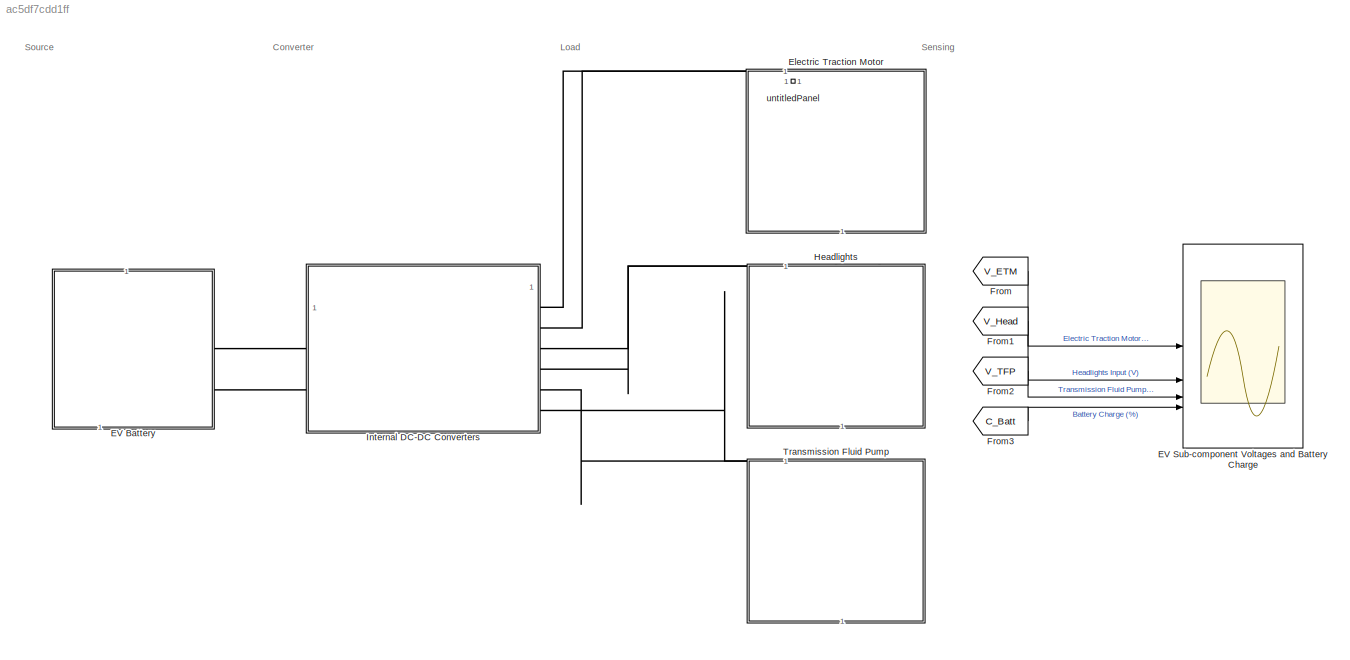
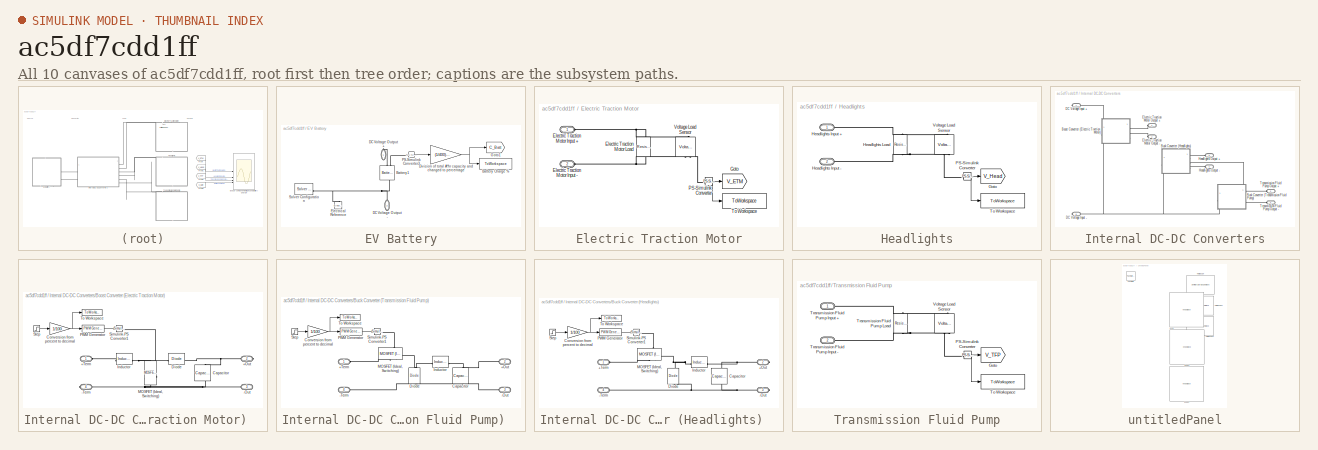
[diagram: thumbnail index - all 10 canvases of the model, root first then tree order]
MODEL slx_ac5df7cdd1ff
KIND model
CONFIG AbsTol = auto
CONFIG EnableMultiTasking = off
CONFIG FixedStep = auto
CONFIG MaxStep = auto
CONFIG MinStep = auto
CONFIG RelTol = 1e-3
CONFIG SampleTimeConstraint = Unconstrained
CONFIG SolverName = ode23t
CONFIG StartTime = 0.0
CONFIG StopTime = 0.08
BLOCK [SubSystem] EV Battery
  PortSchema = {"entries":[{"content":{"sides":[{"content":{},"type":"ConnectorPlacement.EquallySpacedRectSide","uuid":"c6623932-9384-4505-9c8a-7aa7c6d03efe"},{"content":{"side":"RIGHT"},"type":"ConnectorPlacement.EquallySpacedRectSide","uuid":"b63081fa-6f2e-4d52-89b7-0b15c2ff5a8a"},{"content":{"side":"TOP"},"type":"ConnectorPlacement.EquallySpacedRectSide","uuid":"293a2b80-333e-46a9-baf9-140dd0ae167b"},{"conten...<+337ch>
BLOCK [ToWorkspace] EV Battery/Battery Charge %
  FixptAsFi = on
  MaxDataPoints = inf
  SampleTime = -1
  VariableName = Charge
BLOCK [Reference] EV Battery/Battery1  REF=batteryecm_lib/Battery
  LibrarySourceBlock = batt_lib/Cells/Battery
  NameLocation = left
  SourceBlock = batteryecm_lib/Battery
  SourceType = Battery
BLOCK [PMIOPort] EV Battery/DC Voltage Output +
  NameLocation = left
  Side = Right
BLOCK [PMIOPort] EV Battery/DC Voltage Output -
  NameLocation = left
  Port = 2
  Side = Right
BLOCK [Gain] EV Battery/Division of total A*hr capacity and changed to percentage
  Gain = (1/400)*100
BLOCK [Reference] EV Battery/Electrical Reference  REF=fl_lib/Electrical/Electrical Elements/Electrical Reference
  NameLocation = right
  SourceBlock = fl_lib/Electrical/Electrical Elements/Electrical Reference
  SourceType = Electrical Reference
BLOCK [Goto] EV Battery/Goto1
  GotoTag = C_Batt
  TagVisibility = global
BLOCK [Reference] EV Battery/PS-Simulink Converter3  REF=nesl_utility/PS-Simulink
Converter
  SourceBlock = nesl_utility/PS-Simulink\nConverter
  SourceType = PS-Simulink\nConverter
BLOCK [Reference] EV Battery/Solver Configuration  REF=nesl_utility/Solver
Configuration
  SourceBlock = nesl_utility/Solver\nConfiguration
  SourceType = Solver\nConfiguration
BLOCK [Scope] EV Sub-component Voltages and Battery Charge
  Floating = off
  NumInputPorts = 4
  ScopeSpecificationString = Simulink.scopes.TimeScopeBlockCfg('CurrentConfiguration', extmgr.ConfigurationSet(extmgr.Configuration('Core','General UI',true),extmgr.Configuration('Core','Source UI',true),extmgr.Configuration('Sources','WiredSimulink',true),extmgr.Configuration('Visuals','Time Domain',true,'SerializedDisplays',{struct('MinYLimReal','-46.23272','MaxYLimReal','416.09445','YLabelReal','','MinYLimMag','0.00000','M...<+5601ch>
BLOCK [SubSystem] Electric Traction Motor
  PortSchema = {"entries":[{"content":{"sides":[{"content":{},"type":"ConnectorPlacement.EquallySpacedRectSide","uuid":"1c916003-081d-495c-ab06-e1419b6c539b"},{"content":{"side":"RIGHT"},"type":"ConnectorPlacement.EquallySpacedRectSide","uuid":"f192687e-cae6-4b69-b15b-4d7b02c42b9f"},{"content":{"connectorIds":["LConn1","LConn2"],"side":"TOP"},"type":"ConnectorPlacement.EquallySpacedRectSide","uuid":"4ee18eaf-a0e...<+211ch>  <repeated x3 — deduplicated; at blocks: Electric Traction Motor, Headlights, Transmission Fluid Pump>
BLOCK [PMIOPort] Electric Traction Motor/Electric Traction Motor Input +
  Side = Left
BLOCK [PMIOPort] Electric Traction Motor/Electric Traction Motor Input -
  Port = 2
  Side = Left
BLOCK [Reference] Electric Traction Motor/Electric Traction Motor Load  REF=fl_lib/Electrical/Electrical Elements/Resistor
  NameLocation = left
  SourceBlock = fl_lib/Electrical/Electrical Elements/Resistor
  SourceType = Resistor
BLOCK [Goto] Electric Traction Motor/Goto
  GotoTag = V_ETM
  TagVisibility = global
BLOCK [Reference] Electric Traction Motor/PS-Simulink Converter  REF=nesl_utility/PS-Simulink
Converter
  SourceBlock = nesl_utility/PS-Simulink\nConverter
  SourceType = PS-Simulink\nConverter
BLOCK [ToWorkspace] Electric Traction Motor/To Workspace
  FixptAsFi = on
  MaxDataPoints = inf
  SampleTime = -1
  VariableName = V_ETM
BLOCK [Reference] Electric Traction Motor/Voltage Load Sensor  REF=fl_lib/Electrical/Electrical Sensors/Voltage Sensor
  NameLocation = right
  SourceBlock = fl_lib/Electrical/Electrical Sensors/Voltage Sensor
  SourceType = Voltage Sensor
BLOCK [From] From
  GotoTag = V_ETM
  TagVisibility = global
BLOCK [From] From1
  GotoTag = V_Head
  TagVisibility = global
BLOCK [From] From2
  GotoTag = V_TFP
  TagVisibility = global
BLOCK [From] From3
  GotoTag = C_Batt
  TagVisibility = global
BLOCK [SubSystem] Headlights
BLOCK [Goto] Headlights/Goto
  GotoTag = V_Head
  TagVisibility = global
BLOCK [PMIOPort] Headlights/Headlights Input +
  Side = Left
BLOCK [PMIOPort] Headlights/Headlights Input -
  Port = 2
  Side = Left
BLOCK [Reference] Headlights/Headlights Load  REF=fl_lib/Electrical/Electrical Elements/Resistor
  NameLocation = left
  SourceBlock = fl_lib/Electrical/Electrical Elements/Resistor
  SourceType = Resistor
BLOCK [Reference] Headlights/PS-Simulink Converter  REF=nesl_utility/PS-Simulink
Converter
  SourceBlock = nesl_utility/PS-Simulink\nConverter
  SourceType = PS-Simulink\nConverter
BLOCK [ToWorkspace] Headlights/To Workspace
  FixptAsFi = on
  MaxDataPoints = inf
  SampleTime = -1
  VariableName = V_Head
BLOCK [Reference] Headlights/Voltage Load Sensor  REF=fl_lib/Electrical/Electrical Sensors/Voltage Sensor
  NameLocation = right
  SourceBlock = fl_lib/Electrical/Electrical Sensors/Voltage Sensor
  SourceType = Voltage Sensor
BLOCK [SubSystem] Internal DC-DC Converters
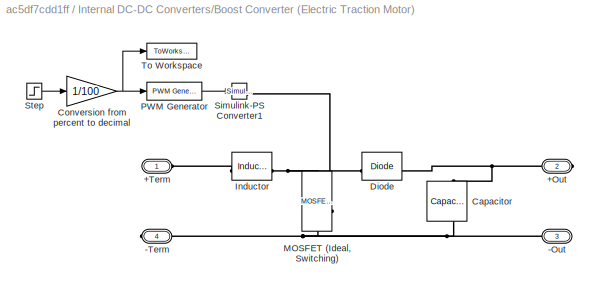
BLOCK [SubSystem] Internal DC-DC Converters/Boost Converter (Electric Traction Motor)  
  NameLocation = left
  PortSchema = {"entries":[{"content":{"sides":[{"content":{},"type":"ConnectorPlacement.EquallySpacedRectSide","uuid":"de7f9f94-85d7-4c11-a379-f82d9a676ef7"},{"content":{"connectorIds":["RConn1","RConn2"],"side":"RIGHT"},"type":"ConnectorPlacement.EquallySpacedRectSide","uuid":"401d076f-92b5-441a-942d-9f536a3912de"},{"content":{"connectorIds":["LConn1"],"side":"TOP"},"type":"ConnectorPlacement.EquallySpacedRect...<+389ch>  <repeated x3 — deduplicated; at blocks: Boost Converter (Electric Traction Motor), Buck Converter (Headlights), Buck Converter (Transmission Fluid Pump)>
BLOCK [PMIOPort] Internal DC-DC Converters/Boost Converter (Electric Traction Motor)  /+Out
  Port = 2
  Side = Right
BLOCK [PMIOPort] Internal DC-DC Converters/Boost Converter (Electric Traction Motor)  /+Term
  Side = Left
BLOCK [PMIOPort] Internal DC-DC Converters/Boost Converter (Electric Traction Motor)  /-Out
  Port = 3
  Side = Right
BLOCK [PMIOPort] Internal DC-DC Converters/Boost Converter (Electric Traction Motor)  /-Term
  Port = 4
  Side = Right
BLOCK [Reference] Internal DC-DC Converters/Boost Converter (Electric Traction Motor)  /Capacitor  REF=fl_lib/Electrical/Electrical Elements/Capacitor
  NameLocation = left
  SourceBlock = fl_lib/Electrical/Electrical Elements/Capacitor
  SourceType = Capacitor
BLOCK [Gain] Internal DC-DC Converters/Boost Converter (Electric Traction Motor)  /Conversion from percent to decimal
  Gain = 1/100
BLOCK [Reference] Internal DC-DC Converters/Boost Converter (Electric Traction Motor)  /Diode  REF=fl_lib/Electrical/Electrical Elements/Diode
  NameLocation = top
  SourceBlock = fl_lib/Electrical/Electrical Elements/Diode
  SourceType = Diode
BLOCK [Reference] Internal DC-DC Converters/Boost Converter (Electric Traction Motor)  /Inductor  REF=fl_lib/Electrical/Electrical Elements/Inductor
  NameLocation = top
  SourceBlock = fl_lib/Electrical/Electrical Elements/Inductor
  SourceType = Inductor
BLOCK [Reference] Internal DC-DC Converters/Boost Converter (Electric Traction Motor)  /MOSFET (Ideal, Switching)  REF=ee_lib/Semiconductors &
Converters/MOSFET
(Ideal,
Switching)
  NameLocation = left
  SourceBlock = ee_lib/Semiconductors &\nConverters/MOSFET\n(Ideal,\nSwitching)
  SourceType = MOSFET\n(Ideal,\nSwitching)
BLOCK [Reference] Internal DC-DC Converters/Boost Converter (Electric Traction Motor)  /PWM Generator  REF=eePwmGenerator/PWM Generator
  LibrarySourceBlock = ee_sl_lib/Pulse Width\nModulation/PWM Generator
  SourceBlock = eePwmGenerator/PWM Generator
  SourceType = PWM Generator
BLOCK [Reference] Internal DC-DC Converters/Boost Converter (Electric Traction Motor)  /Simulink-PS Converter1  REF=nesl_utility/Simulink-PS
Converter
  SourceBlock = nesl_utility/Simulink-PS\nConverter
  SourceType = Simulink-PS\nConverter
BLOCK [Step] Internal DC-DC Converters/Boost Converter (Electric Traction Motor)  /Step
  After = 0
  SampleTime = 0
  Time = 0.035
BLOCK [ToWorkspace] Internal DC-DC Converters/Boost Converter (Electric Traction Motor)  /To Workspace
  FixptAsFi = on
  MaxDataPoints = inf
  SampleTime = -1
  VariableName = DC_ETM
BLOCK [SubSystem] Internal DC-DC Converters/Buck Converter (Headlights)  
  NameLocation = left
BLOCK [PMIOPort] Internal DC-DC Converters/Buck Converter (Headlights)  /+Out
  Port = 2
  Side = Right
BLOCK [PMIOPort] Internal DC-DC Converters/Buck Converter (Headlights)  /+Term
  Side = Left
BLOCK [PMIOPort] Internal DC-DC Converters/Buck Converter (Headlights)  /-Out
  Port = 3
  Side = Right
BLOCK [PMIOPort] Internal DC-DC Converters/Buck Converter (Headlights)  /-Term
  Port = 4
  Side = Right
BLOCK [Reference] Internal DC-DC Converters/Buck Converter (Headlights)  /Capacitor  REF=fl_lib/Electrical/Electrical Elements/Capacitor
  NameLocation = left
  SourceBlock = fl_lib/Electrical/Electrical Elements/Capacitor
  SourceType = Capacitor
BLOCK [Gain] Internal DC-DC Converters/Buck Converter (Headlights)  /Conversion from percent to decimal
  Gain = 1/100
BLOCK [Reference] Internal DC-DC Converters/Buck Converter (Headlights)  /Diode  REF=fl_lib/Electrical/Electrical Elements/Diode
  NameLocation = left
  SourceBlock = fl_lib/Electrical/Electrical Elements/Diode
  SourceType = Diode
BLOCK [Reference] Internal DC-DC Converters/Buck Converter (Headlights)  /Inductor  REF=fl_lib/Electrical/Electrical Elements/Inductor
  NameLocation = top
  SourceBlock = fl_lib/Electrical/Electrical Elements/Inductor
  SourceType = Inductor
BLOCK [Reference] Internal DC-DC Converters/Buck Converter (Headlights)  /MOSFET (Ideal, Switching)  REF=ee_lib/Semiconductors &
Converters/MOSFET
(Ideal,
Switching)
  NameLocation = right
  SourceBlock = ee_lib/Semiconductors &\nConverters/MOSFET\n(Ideal,\nSwitching)
  SourceType = MOSFET\n(Ideal,\nSwitching)
BLOCK [Reference] Internal DC-DC Converters/Buck Converter (Headlights)  /PWM Generator  REF=eePwmGenerator/PWM Generator
  LibrarySourceBlock = ee_sl_lib/Pulse Width\nModulation/PWM Generator
  SourceBlock = eePwmGenerator/PWM Generator
  SourceType = PWM Generator
BLOCK [Reference] Internal DC-DC Converters/Buck Converter (Headlights)  /Simulink-PS Converter1  REF=nesl_utility/Simulink-PS
Converter
  SourceBlock = nesl_utility/Simulink-PS\nConverter
  SourceType = Simulink-PS\nConverter
BLOCK [Step] Internal DC-DC Converters/Buck Converter (Headlights)  /Step
  After = 0
  SampleTime = 0
  Time = 0.035
BLOCK [ToWorkspace] Internal DC-DC Converters/Buck Converter (Headlights)  /To Workspace
  FixptAsFi = on
  MaxDataPoints = inf
  SampleTime = -1
  VariableName = DC_Head
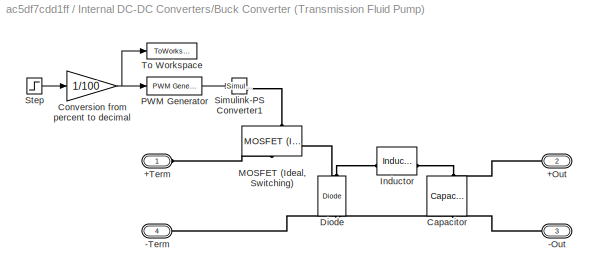
BLOCK [SubSystem] Internal DC-DC Converters/Buck Converter (Transmission Fluid Pump)  
  NameLocation = left
BLOCK [PMIOPort] Internal DC-DC Converters/Buck Converter (Transmission Fluid Pump)  /+Out
  Port = 2
  Side = Right
BLOCK [PMIOPort] Internal DC-DC Converters/Buck Converter (Transmission Fluid Pump)  /+Term
  Side = Left
BLOCK [PMIOPort] Internal DC-DC Converters/Buck Converter (Transmission Fluid Pump)  /-Out
  Port = 3
  Side = Right
BLOCK [PMIOPort] Internal DC-DC Converters/Buck Converter (Transmission Fluid Pump)  /-Term
  Port = 4
  Side = Right
BLOCK [Reference] Internal DC-DC Converters/Buck Converter (Transmission Fluid Pump)  /Capacitor  REF=fl_lib/Electrical/Electrical Elements/Capacitor
  NameLocation = left
  SourceBlock = fl_lib/Electrical/Electrical Elements/Capacitor
  SourceType = Capacitor
BLOCK [Gain] Internal DC-DC Converters/Buck Converter (Transmission Fluid Pump)  /Conversion from percent to decimal
  Gain = 1/100
BLOCK [Reference] Internal DC-DC Converters/Buck Converter (Transmission Fluid Pump)  /Diode  REF=fl_lib/Electrical/Electrical Elements/Diode
  NameLocation = left
  SourceBlock = fl_lib/Electrical/Electrical Elements/Diode
  SourceType = Diode
BLOCK [Reference] Internal DC-DC Converters/Buck Converter (Transmission Fluid Pump)  /Inductor  REF=fl_lib/Electrical/Electrical Elements/Inductor
  NameLocation = top
  SourceBlock = fl_lib/Electrical/Electrical Elements/Inductor
  SourceType = Inductor
BLOCK [Reference] Internal DC-DC Converters/Buck Converter (Transmission Fluid Pump)  /MOSFET (Ideal, Switching)  REF=ee_lib/Semiconductors &
Converters/MOSFET
(Ideal,
Switching)
  NameLocation = right
  SourceBlock = ee_lib/Semiconductors &\nConverters/MOSFET\n(Ideal,\nSwitching)
  SourceType = MOSFET\n(Ideal,\nSwitching)
BLOCK [Reference] Internal DC-DC Converters/Buck Converter (Transmission Fluid Pump)  /PWM Generator  REF=eePwmGenerator/PWM Generator
  LibrarySourceBlock = ee_sl_lib/Pulse Width\nModulation/PWM Generator
  SourceBlock = eePwmGenerator/PWM Generator
  SourceType = PWM Generator
BLOCK [Reference] Internal DC-DC Converters/Buck Converter (Transmission Fluid Pump)  /Simulink-PS Converter1  REF=nesl_utility/Simulink-PS
Converter
  SourceBlock = nesl_utility/Simulink-PS\nConverter
  SourceType = Simulink-PS\nConverter
BLOCK [Step] Internal DC-DC Converters/Buck Converter (Transmission Fluid Pump)  /Step
  After = 0
  SampleTime = 0
  Time = 0.035
BLOCK [ToWorkspace] Internal DC-DC Converters/Buck Converter (Transmission Fluid Pump)  /To Workspace
  FixptAsFi = on
  MaxDataPoints = inf
  SampleTime = -1
  VariableName = DC_TFP
BLOCK [PMIOPort] Internal DC-DC Converters/DC Voltage Input +
  Port = 7
  Side = Right
BLOCK [PMIOPort] Internal DC-DC Converters/DC Voltage Input -
  Port = 8
  Side = Right
BLOCK [PMIOPort] Internal DC-DC Converters/Electric Traction Motor Output +
  NameLocation = top
  Side = Left
BLOCK [PMIOPort] Internal DC-DC Converters/Electric Traction Motor Output -
  Port = 2
  Side = Left
BLOCK [PMIOPort] Internal DC-DC Converters/Headlights Output +
  NameLocation = top
  Port = 3
  Side = Left
BLOCK [PMIOPort] Internal DC-DC Converters/Headlights Output -
  Port = 4
  Side = Left
BLOCK [PMIOPort] Internal DC-DC Converters/Transmission Fluid Pump Output +
  NameLocation = top
  Port = 5
  Side = Left
BLOCK [PMIOPort] Internal DC-DC Converters/Transmission Fluid Pump Output -
  Port = 6
  Side = Left
BLOCK [SubSystem] Transmission Fluid Pump
BLOCK [Goto] Transmission Fluid Pump/Goto
  GotoTag = V_TFP
  TagVisibility = global
BLOCK [Reference] Transmission Fluid Pump/PS-Simulink Converter  REF=nesl_utility/PS-Simulink
Converter
  SourceBlock = nesl_utility/PS-Simulink\nConverter
  SourceType = PS-Simulink\nConverter
BLOCK [ToWorkspace] Transmission Fluid Pump/To Workspace
  FixptAsFi = on
  MaxDataPoints = inf
  SampleTime = -1
  VariableName = V_TFP
BLOCK [PMIOPort] Transmission Fluid Pump/Transmission Fluid Pump Input +
  Side = Left
BLOCK [PMIOPort] Transmission Fluid Pump/Transmission Fluid Pump Input -
  Port = 2
  Side = Left
BLOCK [Reference] Transmission Fluid Pump/Transmission Fluid Pump Load  REF=fl_lib/Electrical/Electrical Elements/Resistor
  NameLocation = left
  SourceBlock = fl_lib/Electrical/Electrical Elements/Resistor
  SourceType = Resistor
BLOCK [Reference] Transmission Fluid Pump/Voltage Load Sensor  REF=fl_lib/Electrical/Electrical Sensors/Voltage Sensor
  NameLocation = right
  SourceBlock = fl_lib/Electrical/Electrical Sensors/Voltage Sensor
  SourceType = Voltage Sensor
BLOCK [SubSystem] untitledPanel
  IsWebBlockPanel = on
  Tag = HiddenForWebPanel
BLOCK [SemiCircularGaugeBlock] untitledPanel/Half Gauge
  LabelPosition = Hide
  PanelInfo = {"height":179,"left":517,"panelId":"panelId-d2794712-f72d-43ac-b620-292c36f24508","top":127,"type":"panelChild","version":"2019b","width":257,"zIndex":1500008}
  ScaleMax = 500
  Tag = HiddenForWebPanel
  TickInterval = 100
BLOCK [SemiCircularGaugeBlock] untitledPanel/Half Gauge1
  LabelPosition = Hide
  PanelInfo = {"height":179,"left":520,"panelId":"panelId-d2794712-f72d-43ac-b620-292c36f24508","top":335,"type":"panelChild","version":"2019b","width":257,"zIndex":1500010}
  ScaleMax = 24
  Tag = HiddenForWebPanel
  TickInterval = 4
BLOCK [SemiCircularGaugeBlock] untitledPanel/Half Gauge2
  LabelPosition = Hide
  PanelInfo = {"height":179,"left":522,"panelId":"panelId-d2794712-f72d-43ac-b620-292c36f24508","top":542,"type":"panelChild","version":"2019b","width":257,"zIndex":1500012}
  ScaleMax = 24
  Tag = HiddenForWebPanel
  TickInterval = 4
BLOCK [KnobBlock] untitledPanel/Knob
  LabelPosition = Hide
  PanelInfo = {"height":197,"left":250,"panelId":"panelId-d2794712-f72d-43ac-b620-292c36f24508","top":123,"type":"panelChild","version":"2019b","width":188,"zIndex":1500014}
  Tag = HiddenForWebPanel
BLOCK [KnobBlock] untitledPanel/Knob1
  LabelPosition = Hide
  PanelInfo = {"height":192,"left":251,"panelId":"panelId-d2794712-f72d-43ac-b620-292c36f24508","top":335,"type":"panelChild","version":"2019b","width":189,"zIndex":1500016}
  Tag = HiddenForWebPanel
BLOCK [KnobBlock] untitledPanel/Knob2
  LabelPosition = Hide
  PanelInfo = {"height":192,"left":250,"panelId":"panelId-d2794712-f72d-43ac-b620-292c36f24508","top":540,"type":"panelChild","version":"2019b","width":189,"zIndex":1500018}
  Tag = HiddenForWebPanel
BLOCK [PanelWebBlock] untitledPanel/panelInfo
  PanelInfo = {"compacted":false,"height":736,"isActiveTab":true,"labels":{"label0978741734":{"deleted":false,"left":11,"settings":{"backgroundColor":"rgba(0, 0, 0, 0)","bold":false,"font":"Arial","fontColor":"black","fontSize":1.5,"italicized":false,"underlined":false},"text":"Duty Cycle Control Panel","top":21},"label3712848784":{"deleted":false,"left":28,"settings":{"backgroundColor":"rgba(0, 0, 0, 0)","bold...<+1844ch>
  PanelSnapshot = iVBORw0KGgoAAAANSUhEUgAAAWYAAAFCCAYAAADCG3c2AAAACXBIWXMAAA7EAAAOxAGVKw4bAAAgAElEQVR4nOydd3wU1fbAz+xs381md7PpvZIeIAEkCS2UgPQiIEVBURBQmvhE5alPkafPgoKolB9SRJAWpUMoUkIJJRBCei+kbJLNZvvuzPz+gI0pu5sNBNjA/X4+fmRn7r1z753JmTPnnnsOVkFR1wCBQCAQNgPtaXcAgUAgEC1BghmBQCBsDCSYEQgEwsZAghmBQCBsDCSYEQgEwsZAghmBQCBsDCSYEQgEwsZoEsxuGBZt/M+fx+s+bfhwv8rycrqlykqFgvbGxIk+HblgY0MDbfHs2Z7hjo6Rflxujxf79Am6cfky52E6n7Rrl/204cP9...<+58240ch>
  Tag = HiddenForWebPanel
ANNOTATION (root): Converter
ANNOTATION (root): Load
ANNOTATION (root): Sensing
ANNOTATION (root): Source
NET EV Battery/Division of total A*hr capacity and changed to percentage:1 -> EV Battery/Battery Charge %:1, EV Battery/Goto1:1
LINE EV Battery/PS-Simulink Converter3:1 -> EV Battery/Division of total A*hr capacity and changed to percentage:1
NET Electric Traction Motor/PS-Simulink Converter:1 -> Electric Traction Motor/Goto:1, Electric Traction Motor/To Workspace:1
LINE From1:1 -> EV Sub-component Voltages and Battery Charge:2
LINE From2:1 -> EV Sub-component Voltages and Battery Charge:3
LINE From3:1 -> EV Sub-component Voltages and Battery Charge:4
LINE From:1 -> EV Sub-component Voltages and Battery Charge:1
NET Headlights/PS-Simulink Converter:1 -> Headlights/Goto:1, Headlights/To Workspace:1
NET Internal DC-DC Converters/Boost Converter (Electric Traction Motor)  /Conversion from percent to decimal:1 -> Internal DC-DC Converters/Boost Converter (Electric Traction Motor)  /PWM Generator:1, Internal DC-DC Converters/Boost Converter (Electric Traction Motor)  /To Workspace:1
LINE Internal DC-DC Converters/Boost Converter (Electric Traction Motor)  /PWM Generator:1 -> Internal DC-DC Converters/Boost Converter (Electric Traction Motor)  /Simulink-PS Converter1:1
LINE Internal DC-DC Converters/Boost Converter (Electric Traction Motor)  /Step:1 -> Internal DC-DC Converters/Boost Converter (Electric Traction Motor)  /Conversion from percent to decimal:1
NET Internal DC-DC Converters/Buck Converter (Headlights)  /Conversion from percent to decimal:1 -> Internal DC-DC Converters/Buck Converter (Headlights)  /PWM Generator:1, Internal DC-DC Converters/Buck Converter (Headlights)  /To Workspace:1
LINE Internal DC-DC Converters/Buck Converter (Headlights)  /PWM Generator:1 -> Internal DC-DC Converters/Buck Converter (Headlights)  /Simulink-PS Converter1:1
LINE Internal DC-DC Converters/Buck Converter (Headlights)  /Step:1 -> Internal DC-DC Converters/Buck Converter (Headlights)  /Conversion from percent to decimal:1
NET Internal DC-DC Converters/Buck Converter (Transmission Fluid Pump)  /Conversion from percent to decimal:1 -> Internal DC-DC Converters/Buck Converter (Transmission Fluid Pump)  /PWM Generator:1, Internal DC-DC Converters/Buck Converter (Transmission Fluid Pump)  /To Workspace:1
LINE Internal DC-DC Converters/Buck Converter (Transmission Fluid Pump)  /PWM Generator:1 -> Internal DC-DC Converters/Buck Converter (Transmission Fluid Pump)  /Simulink-PS Converter1:1
LINE Internal DC-DC Converters/Buck Converter (Transmission Fluid Pump)  /Step:1 -> Internal DC-DC Converters/Buck Converter (Transmission Fluid Pump)  /Conversion from percent to decimal:1
NET Transmission Fluid Pump/PS-Simulink Converter:1 -> Transmission Fluid Pump/Goto:1, Transmission Fluid Pump/To Workspace:1
PLINE EV Battery/Battery1:LConn1 -- EV Battery/DC Voltage Output +:RConn1
PLINE EV Battery/Battery1:LConn2 -- EV Battery/PS-Simulink Converter3:LConn1
PNET net1: EV Battery/Battery1:RConn1 -- EV Battery/DC Voltage Output -:RConn1 -- EV Battery/Electrical Reference:LConn1 -- EV Battery/Solver Configuration:RConn1
PLINE EV Battery:RConn1 -- Internal DC-DC Converters:RConn1
PLINE EV Battery:RConn2 -- Internal DC-DC Converters:RConn2
PNET net2: Electric Traction Motor/Electric Traction Motor Input +:RConn1 -- Electric Traction Motor/Electric Traction Motor Load:LConn1 -- Electric Traction Motor/Voltage Load Sensor:LConn1
PNET net3: Electric Traction Motor/Electric Traction Motor Input -:RConn1 -- Electric Traction Motor/Electric Traction Motor Load:RConn1 -- Electric Traction Motor/Voltage Load Sensor:RConn2
PLINE Electric Traction Motor/PS-Simulink Converter:LConn1 -- Electric Traction Motor/Voltage Load Sensor:RConn1
PLINE Electric Traction Motor:LConn1 -- Internal DC-DC Converters:LConn1
PLINE Electric Traction Motor:LConn2 -- Internal DC-DC Converters:LConn2
PNET net4: Headlights/Headlights Input +:RConn1 -- Headlights/Headlights Load:LConn1 -- Headlights/Voltage Load Sensor:LConn1
PNET net5: Headlights/Headlights Input -:RConn1 -- Headlights/Headlights Load:RConn1 -- Headlights/Voltage Load Sensor:RConn2
PLINE Headlights/PS-Simulink Converter:LConn1 -- Headlights/Voltage Load Sensor:RConn1
PLINE Headlights:LConn1 -- Internal DC-DC Converters:LConn3
PLINE Headlights:LConn2 -- Internal DC-DC Converters:LConn4
PNET net6: Internal DC-DC Converters/Boost Converter (Electric Traction Motor)  /+Out:RConn1 -- Internal DC-DC Converters/Boost Converter (Electric Traction Motor)  /Capacitor:LConn1 -- Internal DC-DC Converters/Boost Converter (Electric Traction Motor)  /Diode:RConn1
PLINE Internal DC-DC Converters/Boost Converter (Electric Traction Motor)  /+Term:RConn1 -- Internal DC-DC Converters/Boost Converter (Electric Traction Motor)  /Inductor:LConn1
PNET net7: Internal DC-DC Converters/Boost Converter (Electric Traction Motor)  /-Out:RConn1 -- Internal DC-DC Converters/Boost Converter (Electric Traction Motor)  /-Term:RConn1 -- Internal DC-DC Converters/Boost Converter (Electric Traction Motor)  /Capacitor:RConn1 -- Internal DC-DC Converters/Boost Converter (Electric Traction Motor)  /MOSFET (Ideal, Switching):RConn2
PNET net8: Internal DC-DC Converters/Boost Converter (Electric Traction Motor)  /Diode:LConn1 -- Internal DC-DC Converters/Boost Converter (Electric Traction Motor)  /Inductor:RConn1 -- Internal DC-DC Converters/Boost Converter (Electric Traction Motor)  /MOSFET (Ideal, Switching):RConn1
PLINE Internal DC-DC Converters/Boost Converter (Electric Traction Motor)  /MOSFET (Ideal, Switching):LConn1 -- Internal DC-DC Converters/Boost Converter (Electric Traction Motor)  /Simulink-PS Converter1:RConn1
PNET net9: Internal DC-DC Converters/Boost Converter (Electric Traction Motor)  :LConn1 -- Internal DC-DC Converters/Buck Converter (Headlights)  :LConn1 -- Internal DC-DC Converters/Buck Converter (Transmission Fluid Pump)  :LConn1 -- Internal DC-DC Converters/DC Voltage Input +:RConn1
PLINE Internal DC-DC Converters/Boost Converter (Electric Traction Motor)  :RConn1 -- Internal DC-DC Converters/Electric Traction Motor Output +:RConn1
PLINE Internal DC-DC Converters/Boost Converter (Electric Traction Motor)  :RConn2 -- Internal DC-DC Converters/Electric Traction Motor Output -:RConn1
PNET net10: Internal DC-DC Converters/Boost Converter (Electric Traction Motor)  :RConn3 -- Internal DC-DC Converters/Buck Converter (Headlights)  :RConn3 -- Internal DC-DC Converters/Buck Converter (Transmission Fluid Pump)  :RConn3 -- Internal DC-DC Converters/DC Voltage Input -:RConn1
PNET net11: Internal DC-DC Converters/Buck Converter (Headlights)  /+Out:RConn1 -- Internal DC-DC Converters/Buck Converter (Headlights)  /Capacitor:LConn1 -- Internal DC-DC Converters/Buck Converter (Headlights)  /Inductor:RConn1
PLINE Internal DC-DC Converters/Buck Converter (Headlights)  /+Term:RConn1 -- Internal DC-DC Converters/Buck Converter (Headlights)  /MOSFET (Ideal, Switching):RConn1
PNET net12: Internal DC-DC Converters/Buck Converter (Headlights)  /-Out:RConn1 -- Internal DC-DC Converters/Buck Converter (Headlights)  /-Term:RConn1 -- Internal DC-DC Converters/Buck Converter (Headlights)  /Capacitor:RConn1 -- Internal DC-DC Converters/Buck Converter (Headlights)  /Diode:LConn1
PNET net13: Internal DC-DC Converters/Buck Converter (Headlights)  /Diode:RConn1 -- Internal DC-DC Converters/Buck Converter (Headlights)  /Inductor:LConn1 -- Internal DC-DC Converters/Buck Converter (Headlights)  /MOSFET (Ideal, Switching):RConn2
PLINE Internal DC-DC Converters/Buck Converter (Headlights)  /MOSFET (Ideal, Switching):LConn1 -- Internal DC-DC Converters/Buck Converter (Headlights)  /Simulink-PS Converter1:RConn1
PLINE Internal DC-DC Converters/Buck Converter (Headlights)  :RConn1 -- Internal DC-DC Converters/Headlights Output +:RConn1
PLINE Internal DC-DC Converters/Buck Converter (Headlights)  :RConn2 -- Internal DC-DC Converters/Headlights Output -:RConn1
PNET net14: Internal DC-DC Converters/Buck Converter (Transmission Fluid Pump)  /+Out:RConn1 -- Internal DC-DC Converters/Buck Converter (Transmission Fluid Pump)  /Capacitor:LConn1 -- Internal DC-DC Converters/Buck Converter (Transmission Fluid Pump)  /Inductor:RConn1
PLINE Internal DC-DC Converters/Buck Converter (Transmission Fluid Pump)  /+Term:RConn1 -- Internal DC-DC Converters/Buck Converter (Transmission Fluid Pump)  /MOSFET (Ideal, Switching):RConn1
PNET net15: Internal DC-DC Converters/Buck Converter (Transmission Fluid Pump)  /-Out:RConn1 -- Internal DC-DC Converters/Buck Converter (Transmission Fluid Pump)  /-Term:RConn1 -- Internal DC-DC Converters/Buck Converter (Transmission Fluid Pump)  /Capacitor:RConn1 -- Internal DC-DC Converters/Buck Converter (Transmission Fluid Pump)  /Diode:LConn1
PNET net16: Internal DC-DC Converters/Buck Converter (Transmission Fluid Pump)  /Diode:RConn1 -- Internal DC-DC Converters/Buck Converter (Transmission Fluid Pump)  /Inductor:LConn1 -- Internal DC-DC Converters/Buck Converter (Transmission Fluid Pump)  /MOSFET (Ideal, Switching):RConn2
PLINE Internal DC-DC Converters/Buck Converter (Transmission Fluid Pump)  /MOSFET (Ideal, Switching):LConn1 -- Internal DC-DC Converters/Buck Converter (Transmission Fluid Pump)  /Simulink-PS Converter1:RConn1
PLINE Internal DC-DC Converters/Buck Converter (Transmission Fluid Pump)  :RConn1 -- Internal DC-DC Converters/Transmission Fluid Pump Output +:RConn1
PLINE Internal DC-DC Converters/Buck Converter (Transmission Fluid Pump)  :RConn2 -- Internal DC-DC Converters/Transmission Fluid Pump Output -:RConn1
PLINE Internal DC-DC Converters:LConn5 -- Transmission Fluid Pump:LConn1
PLINE Internal DC-DC Converters:LConn6 -- Transmission Fluid Pump:LConn2
PLINE Transmission Fluid Pump/PS-Simulink Converter:LConn1 -- Transmission Fluid Pump/Voltage Load Sensor:RConn1
PNET net17: Transmission Fluid Pump/Transmission Fluid Pump Input +:RConn1 -- Transmission Fluid Pump/Transmission Fluid Pump Load:LConn1 -- Transmission Fluid Pump/Voltage Load Sensor:LConn1
PNET net18: Transmission Fluid Pump/Transmission Fluid Pump Input -:RConn1 -- Transmission Fluid Pump/Transmission Fluid Pump Load:RConn1 -- Transmission Fluid Pump/Voltage Load Sensor:RConn2
note: NET lines group one-source signal fan-out (src -> all destinations, sorted); 1:1 wires keep LINE; PNET lines group multi-terminal physical nets as a canonical sorted terminal list (undirected conserving connections); 2-terminal nets keep the pairwise PLINE form
